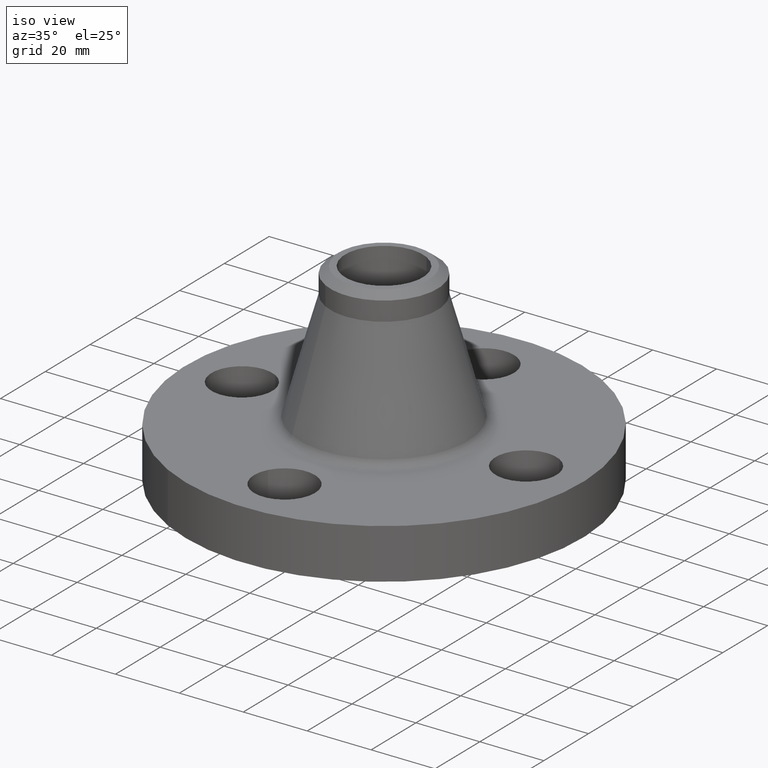
[diagram: clean part render]
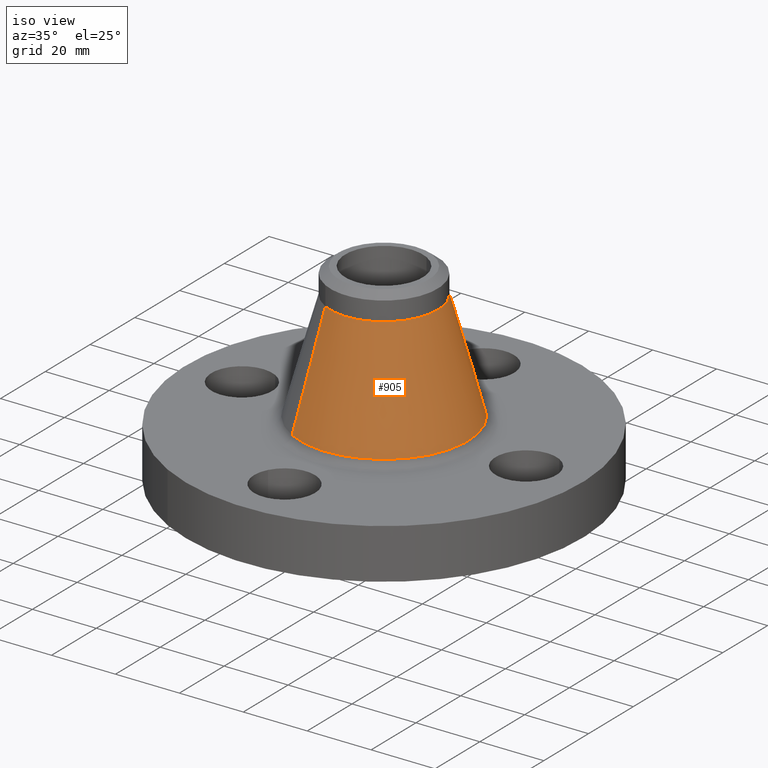
[diagram: same view with one face highlighted and labeled with its STEP entity id]
A machine part, iso view. The second image highlights one B-rep face of the part: STEP entity #905.
In plain terms, the highlighted conical surface has half-angle 15.474 deg.
Its self-contained STEP definition (entity closure, byte-faithful):
#724=AXIS2_PLACEMENT_3D('Circle Axis2P3D',#722,#723,$) ;
#892=AXIS2_PLACEMENT_3D('Cone Axis2P3D',#889,#890,#891) ;
#896=AXIS2_PLACEMENT_3D('Circle Axis2P3D',#894,#895,$) ;
#688=CARTESIAN_POINT('Vertex',(-0.496513817097,-0.908862445855,0.707984487806)) ;
#695=CARTESIAN_POINT('Vertex',(0.496513817097,0.908862445855,0.707984487807)) ;
#722=CARTESIAN_POINT('Axis2P3D Location',(0.,0.,0.707984487807)) ;
#856=CARTESIAN_POINT('Line Origine',(-0.406467336287,-0.74403346835,1.38645680746)) ;
#860=CARTESIAN_POINT('Vertex',(-0.31642085548,-0.57920449085,2.06492912712)) ;
#867=CARTESIAN_POINT('Vertex',(0.31642085548,0.57920449085,2.06492912712)) ;
#870=CARTESIAN_POINT('Line Origine',(0.406467336287,0.74403346835,1.38645680746)) ;
#889=CARTESIAN_POINT('Axis2P3D Location',(0.,0.,2.06492912712)) ;
#894=CARTESIAN_POINT('Axis2P3D Location',(0.,0.,2.06492912712)) ;
#723=DIRECTION('Axis2P3D Direction',(-0.,0.,-0.0393700787402)) ;
#857=DIRECTION('Vector Direction',(-0.0050357789301,-0.0092179315008,-0.0379430332132)) ;
#871=DIRECTION('Vector Direction',(0.0050357789301,0.0092179315008,-0.0379430332132)) ;
#890=DIRECTION('Axis2P3D Direction',(0.,0.,-0.0393700787402)) ;
#891=DIRECTION('Axis2P3D XDirection',(0.0188750212049,0.0345504945626,0.)) ;
#895=DIRECTION('Axis2P3D Direction',(-0.,0.,-0.0393700787402)) ;
#858=VECTOR('Line Direction',#857,0.0393700787402) ;
#872=VECTOR('Line Direction',#871,0.0393700787402) ;
#900=ORIENTED_EDGE('',*,*,#726,.F.) ;
#901=ORIENTED_EDGE('',*,*,#874,.T.) ;
#902=ORIENTED_EDGE('',*,*,#898,.T.) ;
#903=ORIENTED_EDGE('',*,*,#862,.F.) ;
#905=ADVANCED_FACE('PartBody',(#904),#893,.T.) ;
#725=CIRCLE('generated circle',#724,1.03564323783) ;
#897=CIRCLE('generated circle',#896,0.660000000003) ;
#893=CONICAL_SURFACE('Cone',#892,0.660000000003,0.270066923464) ;
#726=EDGE_CURVE('',#696,#689,#725,.T.) ;
#862=EDGE_CURVE('',#689,#861,#859,.F.) ;
#874=EDGE_CURVE('',#696,#868,#873,.F.) ;
#898=EDGE_CURVE('',#868,#861,#897,.T.) ;
#899=EDGE_LOOP('',(#900,#901,#902,#903)) ;
#904=FACE_OUTER_BOUND('',#899,.T.) ;
#859=LINE('Line',#856,#858) ;
#873=LINE('Line',#870,#872) ;
#689=VERTEX_POINT('',#688) ;
#696=VERTEX_POINT('',#695) ;
#861=VERTEX_POINT('',#860) ;
#868=VERTEX_POINT('',#867) ;